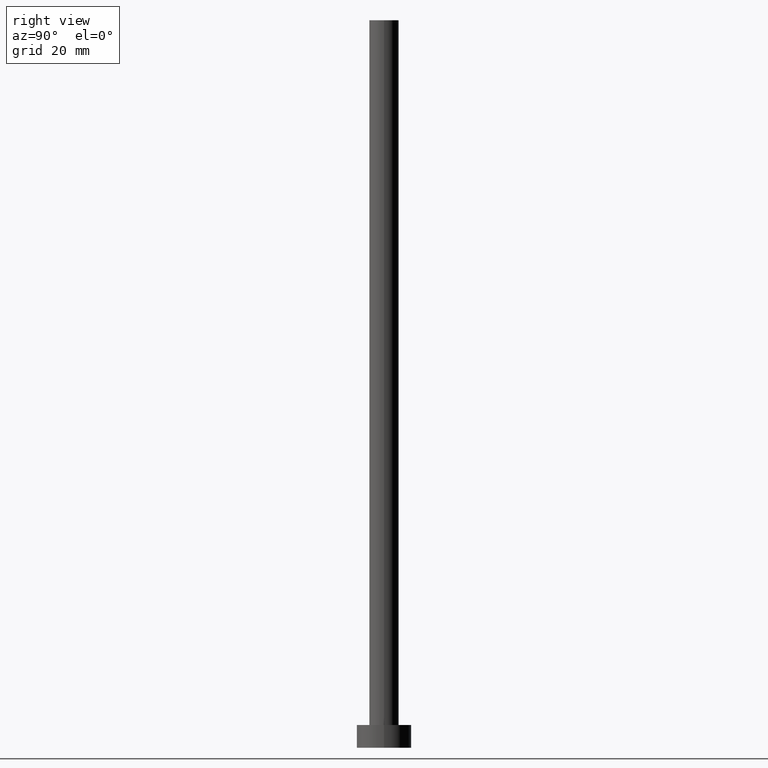
[diagram: clean part render]
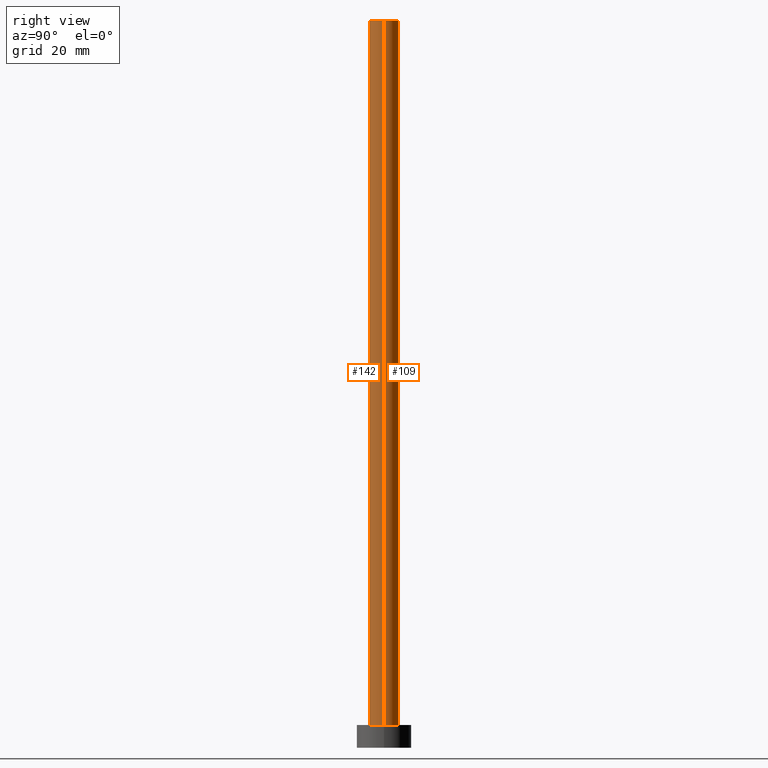
[diagram: same view with one multi-face feature highlighted, each face labeled with its STEP entity id]
A machine part, right view. The highlighted faces form ONE feature: a constant-radius fillet chain: 2 tangent blend faces with common blend radius 3.25 mm. The faces share edges in the B-rep.
Their STEP definitions:
[1] entity #142 (Cylinder):
#4 = CARTESIAN_POINT ( 'NONE',  ( -3.250000000000000444, 0.000000000000000000, 5.000000000000000000 ) ) ;
#12 = AXIS2_PLACEMENT_3D ( 'NONE', #160, #121, #220 ) ;
#17 = ORIENTED_EDGE ( 'NONE', *, *, #148, .F. ) ;
#18 = VERTEX_POINT ( 'NONE', #215 ) ;
#19 = CARTESIAN_POINT ( 'NONE',  ( -3.250000000000000444, 0.000000000000000000, 160.0000000000000000 ) ) ;
#32 = VERTEX_POINT ( 'NONE', #19 ) ;
#35 = LINE ( 'NONE', #116, #146 ) ;
#37 = VECTOR ( 'NONE', #83, 1000.000000000000000 ) ;
#41 = DIRECTION ( 'NONE',  ( -1.000000000000000000, 0.000000000000000000, 0.000000000000000000 ) ) ;
#45 = CYLINDRICAL_SURFACE ( 'NONE', #208, 3.250000000000000444 ) ;
#55 = ORIENTED_EDGE ( 'NONE', *, *, #73, .F. ) ;
#73 = EDGE_CURVE ( 'NONE', #18, #210, #35, .T. ) ;
#83 = DIRECTION ( 'NONE',  ( -0.000000000000000000, -0.000000000000000000, -1.000000000000000000 ) ) ;
#99 = ORIENTED_EDGE ( 'NONE', *, *, #236, .T. ) ;
#101 = CIRCLE ( 'NONE', #150, 3.250000000000000444 ) ;
#104 = CARTESIAN_POINT ( 'NONE',  ( 0.000000000000000000, 0.000000000000000000, 5.000000000000000000 ) ) ;
#116 = CARTESIAN_POINT ( 'NONE',  ( 3.250000000000000444, 3.980102097228898231E-16, 160.0000000000000000 ) ) ;
#121 = DIRECTION ( 'NONE',  ( 0.000000000000000000, 0.000000000000000000, 1.000000000000000000 ) ) ;
#128 = EDGE_CURVE ( 'NONE', #32, #134, #217, .T. ) ;
#134 = VERTEX_POINT ( 'NONE', #4 ) ;
#142 = ADVANCED_FACE ( 'NONE', ( #180 ), #45, .T. ) ;
#144 = CARTESIAN_POINT ( 'NONE',  ( 0.000000000000000000, 0.000000000000000000, 160.0000000000000000 ) ) ;
#146 = VECTOR ( 'NONE', #194, 1000.000000000000000 ) ;
#148 = EDGE_CURVE ( 'NONE', #32, #18, #167, .T. ) ;
#150 = AXIS2_PLACEMENT_3D ( 'NONE', #104, #201, #233 ) ;
#160 = CARTESIAN_POINT ( 'NONE',  ( 0.000000000000000000, 0.000000000000000000, 160.0000000000000000 ) ) ;
#167 = CIRCLE ( 'NONE', #12, 3.250000000000000444 ) ;
#179 = CARTESIAN_POINT ( 'NONE',  ( 3.250000000000000444, 3.980102097228898231E-16, 5.000000000000000000 ) ) ;
#180 = FACE_OUTER_BOUND ( 'NONE', #195, .T. ) ;
#194 = DIRECTION ( 'NONE',  ( -0.000000000000000000, -0.000000000000000000, -1.000000000000000000 ) ) ;
#195 = EDGE_LOOP ( 'NONE', ( #55, #17, #250, #99 ) ) ;
#201 = DIRECTION ( 'NONE',  ( 0.000000000000000000, 0.000000000000000000, 1.000000000000000000 ) ) ;
#208 = AXIS2_PLACEMENT_3D ( 'NONE', #144, #219, #41 ) ;
#210 = VERTEX_POINT ( 'NONE', #179 ) ;
#215 = CARTESIAN_POINT ( 'NONE',  ( 3.250000000000000444, 3.980102097228898231E-16, 160.0000000000000000 ) ) ;
#217 = LINE ( 'NONE', #237, #37 ) ;
#219 = DIRECTION ( 'NONE',  ( -0.000000000000000000, -0.000000000000000000, -1.000000000000000000 ) ) ;
#220 = DIRECTION ( 'NONE',  ( 1.000000000000000000, 0.000000000000000000, 0.000000000000000000 ) ) ;
#233 = DIRECTION ( 'NONE',  ( 1.000000000000000000, 0.000000000000000000, 0.000000000000000000 ) ) ;
#236 = EDGE_CURVE ( 'NONE', #134, #210, #101, .T. ) ;
#237 = CARTESIAN_POINT ( 'NONE',  ( -3.250000000000000444, 0.000000000000000000, 160.0000000000000000 ) ) ;
#250 = ORIENTED_EDGE ( 'NONE', *, *, #128, .T. ) ;
[2] entity #109 (Cylinder):
#2 = DIRECTION ( 'NONE',  ( -1.000000000000000000, 0.000000000000000000, 0.000000000000000000 ) ) ;
#3 = CIRCLE ( 'NONE', #218, 3.250000000000000444 ) ;
#4 = CARTESIAN_POINT ( 'NONE',  ( -3.250000000000000444, 0.000000000000000000, 5.000000000000000000 ) ) ;
#9 = ORIENTED_EDGE ( 'NONE', *, *, #128, .F. ) ;
#18 = VERTEX_POINT ( 'NONE', #215 ) ;
#19 = CARTESIAN_POINT ( 'NONE',  ( -3.250000000000000444, 0.000000000000000000, 160.0000000000000000 ) ) ;
#28 = EDGE_LOOP ( 'NONE', ( #80, #118, #61, #9 ) ) ;
#32 = VERTEX_POINT ( 'NONE', #19 ) ;
#35 = LINE ( 'NONE', #116, #146 ) ;
#37 = VECTOR ( 'NONE', #83, 1000.000000000000000 ) ;
#60 = CYLINDRICAL_SURFACE ( 'NONE', #252, 3.250000000000000444 ) ;
#61 = ORIENTED_EDGE ( 'NONE', *, *, #213, .T. ) ;
#62 = CARTESIAN_POINT ( 'NONE',  ( 0.000000000000000000, 0.000000000000000000, 160.0000000000000000 ) ) ;
#63 = EDGE_CURVE ( 'NONE', #18, #32, #3, .T. ) ;
#73 = EDGE_CURVE ( 'NONE', #18, #210, #35, .T. ) ;
#80 = ORIENTED_EDGE ( 'NONE', *, *, #63, .F. ) ;
#83 = DIRECTION ( 'NONE',  ( -0.000000000000000000, -0.000000000000000000, -1.000000000000000000 ) ) ;
#109 = ADVANCED_FACE ( 'NONE', ( #154 ), #60, .T. ) ;
#114 = CARTESIAN_POINT ( 'NONE',  ( 0.000000000000000000, 0.000000000000000000, 160.0000000000000000 ) ) ;
#116 = CARTESIAN_POINT ( 'NONE',  ( 3.250000000000000444, 3.980102097228898231E-16, 160.0000000000000000 ) ) ;
#118 = ORIENTED_EDGE ( 'NONE', *, *, #73, .T. ) ;
#122 = CIRCLE ( 'NONE', #251, 3.250000000000000444 ) ;
#124 = CARTESIAN_POINT ( 'NONE',  ( 0.000000000000000000, 0.000000000000000000, 5.000000000000000000 ) ) ;
#128 = EDGE_CURVE ( 'NONE', #32, #134, #217, .T. ) ;
#134 = VERTEX_POINT ( 'NONE', #4 ) ;
#136 = DIRECTION ( 'NONE',  ( 0.000000000000000000, 0.000000000000000000, 1.000000000000000000 ) ) ;
#146 = VECTOR ( 'NONE', #194, 1000.000000000000000 ) ;
#154 = FACE_OUTER_BOUND ( 'NONE', #28, .T. ) ;
#179 = CARTESIAN_POINT ( 'NONE',  ( 3.250000000000000444, 3.980102097228898231E-16, 5.000000000000000000 ) ) ;
#187 = DIRECTION ( 'NONE',  ( -0.000000000000000000, -0.000000000000000000, -1.000000000000000000 ) ) ;
#194 = DIRECTION ( 'NONE',  ( -0.000000000000000000, -0.000000000000000000, -1.000000000000000000 ) ) ;
#210 = VERTEX_POINT ( 'NONE', #179 ) ;
#211 = DIRECTION ( 'NONE',  ( 1.000000000000000000, 0.000000000000000000, 0.000000000000000000 ) ) ;
#213 = EDGE_CURVE ( 'NONE', #210, #134, #122, .T. ) ;
#215 = CARTESIAN_POINT ( 'NONE',  ( 3.250000000000000444, 3.980102097228898231E-16, 160.0000000000000000 ) ) ;
#217 = LINE ( 'NONE', #237, #37 ) ;
#218 = AXIS2_PLACEMENT_3D ( 'NONE', #114, #136, #211 ) ;
#221 = DIRECTION ( 'NONE',  ( 1.000000000000000000, 0.000000000000000000, 0.000000000000000000 ) ) ;
#237 = CARTESIAN_POINT ( 'NONE',  ( -3.250000000000000444, 0.000000000000000000, 160.0000000000000000 ) ) ;
#251 = AXIS2_PLACEMENT_3D ( 'NONE', #124, #254, #221 ) ;
#252 = AXIS2_PLACEMENT_3D ( 'NONE', #62, #187, #2 ) ;
#254 = DIRECTION ( 'NONE',  ( 0.000000000000000000, 0.000000000000000000, 1.000000000000000000 ) ) ;